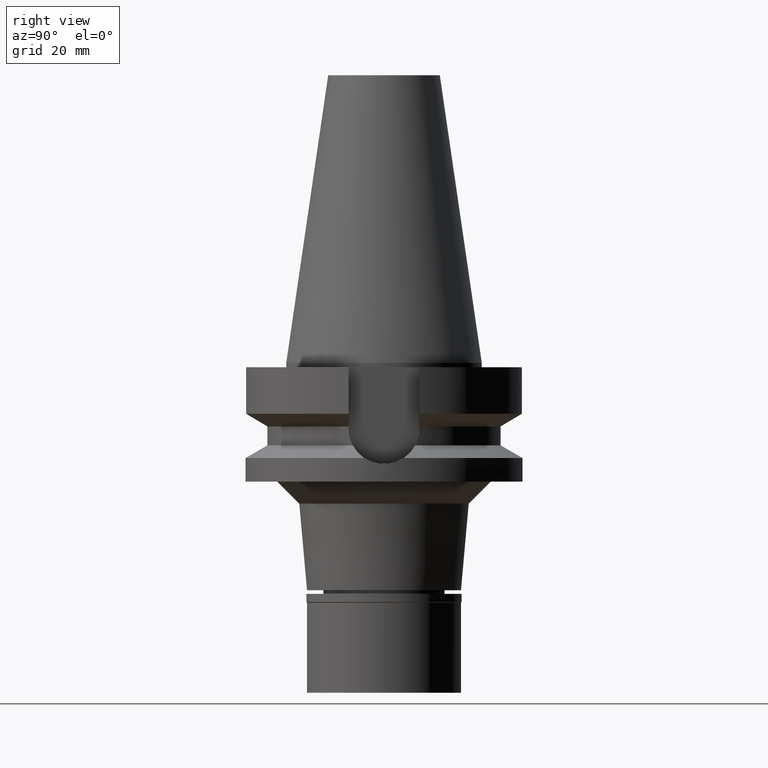
[diagram: clean part render]
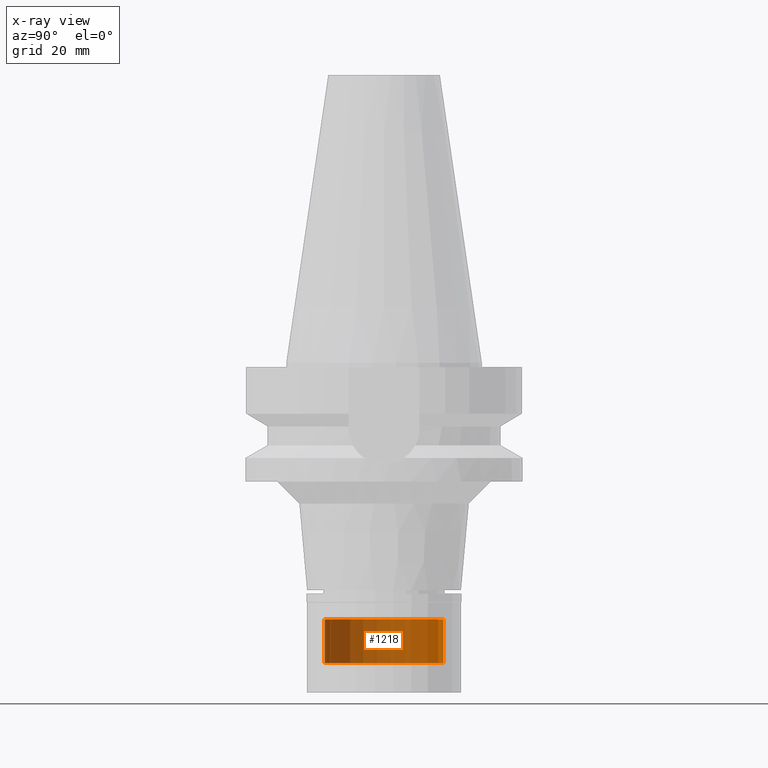
[diagram: x-ray — body ghosted, one internal face saturated and labeled with its STEP entity id]
A machine part, right view, then the same camera in x-ray: the body is ghosted and one INTERNAL B-rep face — a face not visible from any outside direction — is saturated and labeled: STEP entity #1218.
In plain terms, the highlighted cylindrical surface (partial cylindrical patch) has radius 13.5 mm, axis along (0, 0, -1).
Its self-contained STEP definition (entity closure, byte-faithful):
#79 = EDGE_CURVE ( 'NONE', #1471, #157, #2741, .T. ) ;
#157 = VERTEX_POINT ( 'NONE', #1523 ) ;
#243 = AXIS2_PLACEMENT_3D ( 'NONE', #2863, #1222, #508 ) ;
#508 = DIRECTION ( 'NONE',  ( 0.0000000000000000000, 1.000000000000000000, 0.0000000000000000000 ) ) ;
#732 = VECTOR ( 'NONE', #1752, 1000.000000000000000 ) ;
#779 = CYLINDRICAL_SURFACE ( 'NONE', #2104, 13.50000000000000000 ) ;
#782 = VECTOR ( 'NONE', #2510, 1000.000000000000000 ) ;
#941 = CARTESIAN_POINT ( 'NONE',  ( 0.0000000000000000000, -13.50000000000000000, -68.29999999999999716 ) ) ;
#993 = DIRECTION ( 'NONE',  ( 0.0000000000000000000, 0.0000000000000000000, -1.000000000000000000 ) ) ;
#1004 = ORIENTED_EDGE ( 'NONE', *, *, #1341, .T. ) ;
#1027 = FACE_OUTER_BOUND ( 'NONE', #3011, .T. ) ;
#1184 = CIRCLE ( 'NONE', #243, 13.50000000000000000 ) ;
#1218 = ADVANCED_FACE ( 'NONE', ( #1027 ), #779, .T. ) ;
#1222 = DIRECTION ( 'NONE',  ( 0.0000000000000000000, 0.0000000000000000000, 1.000000000000000000 ) ) ;
#1236 = DIRECTION ( 'NONE',  ( 0.0000000000000000000, 0.0000000000000000000, -1.000000000000000000 ) ) ;
#1341 = EDGE_CURVE ( 'NONE', #157, #1924, #2478, .T. ) ;
#1366 = EDGE_CURVE ( 'NONE', #1471, #2962, #2760, .T. ) ;
#1459 = CARTESIAN_POINT ( 'NONE',  ( 0.0000000000000000000, 13.50000000000000000, -68.29999999999999716 ) ) ;
#1471 = VERTEX_POINT ( 'NONE', #2305 ) ;
#1523 = CARTESIAN_POINT ( 'NONE',  ( 0.0000000000000000000, 13.50000000000000000, -58.29999999999999716 ) ) ;
#1557 = CARTESIAN_POINT ( 'NONE',  ( 0.0000000000000000000, -13.50000000000000000, -58.29999999999999716 ) ) ;
#1752 = DIRECTION ( 'NONE',  ( 0.0000000000000000000, 0.0000000000000000000, -1.000000000000000000 ) ) ;
#1924 = VERTEX_POINT ( 'NONE', #1459 ) ;
#1945 = ORIENTED_EDGE ( 'NONE', *, *, #3003, .T. ) ;
#1955 = CARTESIAN_POINT ( 'NONE',  ( 0.0000000000000000000, 2.107433444312999912E-14, 72.08499999999999375 ) ) ;
#2104 = AXIS2_PLACEMENT_3D ( 'NONE', #1955, #993, #2670 ) ;
#2164 = DIRECTION ( 'NONE',  ( 0.0000000000000000000, -1.000000000000000000, 0.0000000000000000000 ) ) ;
#2305 = CARTESIAN_POINT ( 'NONE',  ( 0.0000000000000000000, -13.50000000000000000, -58.29999999999999716 ) ) ;
#2478 = LINE ( 'NONE', #2494, #732 ) ;
#2494 = CARTESIAN_POINT ( 'NONE',  ( 0.0000000000000000000, 13.50000000000000000, -58.29999999999999716 ) ) ;
#2510 = DIRECTION ( 'NONE',  ( 0.0000000000000000000, 0.0000000000000000000, -1.000000000000000000 ) ) ;
#2670 = DIRECTION ( 'NONE',  ( 0.0000000000000000000, -1.000000000000000000, 0.0000000000000000000 ) ) ;
#2741 = CIRCLE ( 'NONE', #3037, 13.50000000000000000 ) ;
#2760 = LINE ( 'NONE', #1557, #782 ) ;
#2817 = ORIENTED_EDGE ( 'NONE', *, *, #79, .T. ) ;
#2844 = CARTESIAN_POINT ( 'NONE',  ( 0.0000000000000000000, 2.107433444312999912E-14, -58.29999999999999716 ) ) ;
#2863 = CARTESIAN_POINT ( 'NONE',  ( 0.0000000000000000000, 2.107433444312999912E-14, -68.29999999999999716 ) ) ;
#2874 = ORIENTED_EDGE ( 'NONE', *, *, #1366, .F. ) ;
#2962 = VERTEX_POINT ( 'NONE', #941 ) ;
#3003 = EDGE_CURVE ( 'NONE', #1924, #2962, #1184, .T. ) ;
#3011 = EDGE_LOOP ( 'NONE', ( #1945, #2874, #2817, #1004 ) ) ;
#3037 = AXIS2_PLACEMENT_3D ( 'NONE', #2844, #1236, #2164 ) ;